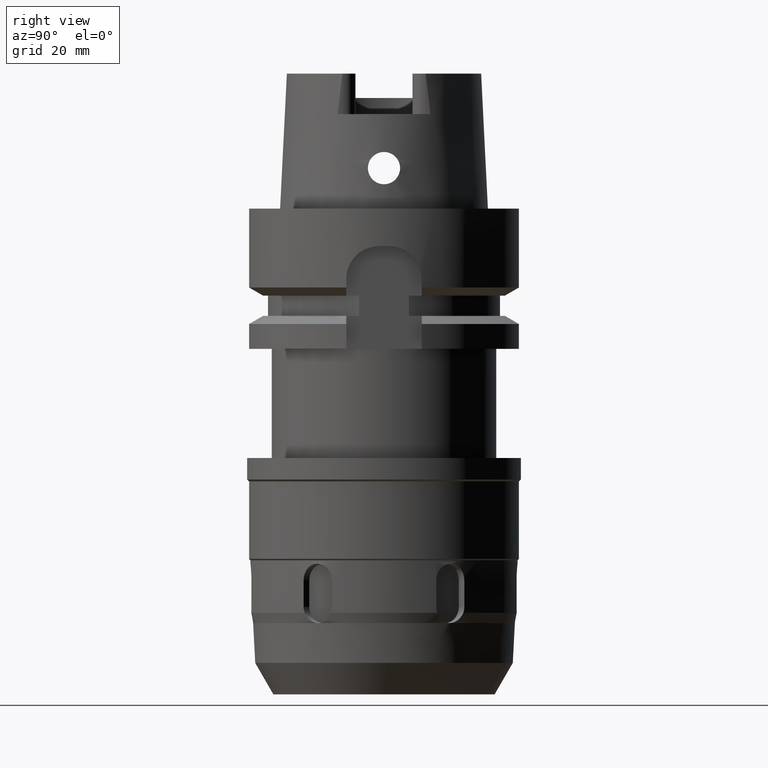
[diagram: clean part render]
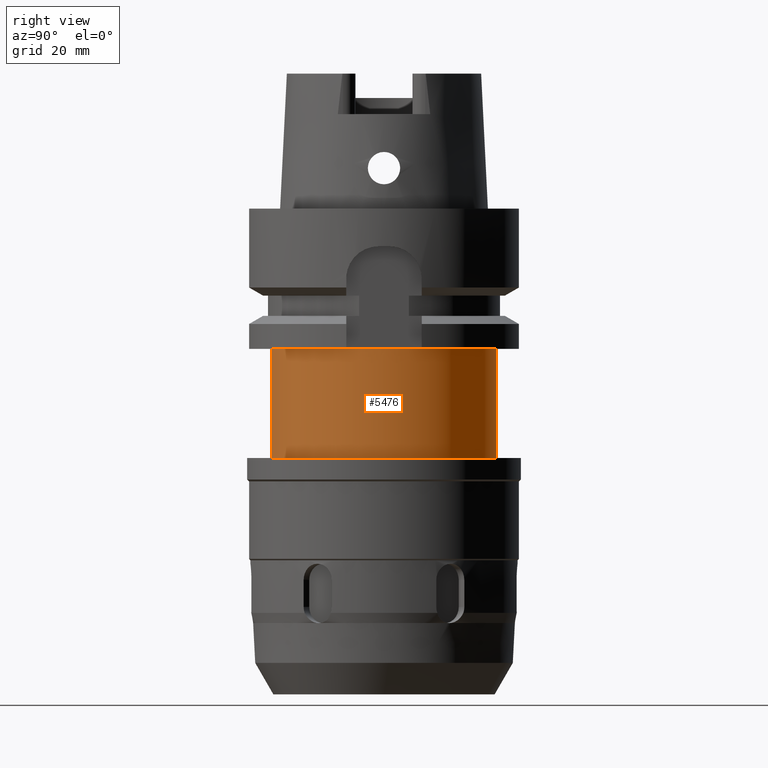
[diagram: same view with one face highlighted and labeled with its STEP entity id]
A machine part, right view. The second image highlights one B-rep face of the part: STEP entity #5476.
In plain terms, the highlighted cylindrical surface (partial cylindrical patch) has radius 20.8 mm, axis along (0, 0, 1).
Its self-contained STEP definition (entity closure, byte-faithful):
#2291=CARTESIAN_POINT('',(0.E0,0.E0,-4.62E1));
#2292=DIRECTION('',(0.E0,0.E0,1.E0));
#2293=DIRECTION('',(0.E0,-1.E0,0.E0));
#2294=AXIS2_PLACEMENT_3D('',#2291,#2292,#2293);
#2307=DIRECTION('',(0.E0,0.E0,-1.E0));
#2308=VECTOR('',#2307,2.02E1);
#2309=CARTESIAN_POINT('',(0.E0,2.08E1,-2.6E1));
#2310=LINE('',#2309,#2308);
#2314=DIRECTION('',(0.E0,0.E0,-1.E0));
#2315=VECTOR('',#2314,2.02E1);
#2316=CARTESIAN_POINT('',(0.E0,-2.08E1,-2.6E1));
#2317=LINE('',#2316,#2315);
#2397=CARTESIAN_POINT('',(0.E0,0.E0,-2.6E1));
#2398=DIRECTION('',(0.E0,0.E0,-1.E0));
#2399=DIRECTION('',(0.E0,1.E0,0.E0));
#2400=AXIS2_PLACEMENT_3D('',#2397,#2398,#2399);
#3716=CARTESIAN_POINT('',(0.E0,-2.08E1,-4.62E1));
#3717=CARTESIAN_POINT('',(0.E0,2.08E1,-4.62E1));
#3718=VERTEX_POINT('',#3716);
#3719=VERTEX_POINT('',#3717);
#3720=CARTESIAN_POINT('',(0.E0,2.08E1,-2.6E1));
#3721=VERTEX_POINT('',#3720);
#3722=CARTESIAN_POINT('',(0.E0,-2.08E1,-2.6E1));
#3723=VERTEX_POINT('',#3722);
#5462=CARTESIAN_POINT('',(0.E0,0.E0,-9.575E1));
#5463=DIRECTION('',(0.E0,0.E0,1.E0));
#5464=DIRECTION('',(0.E0,1.E0,0.E0));
#5465=AXIS2_PLACEMENT_3D('',#5462,#5463,#5464);
#5466=CYLINDRICAL_SURFACE('',#5465,2.08E1);
#5468=ORIENTED_EDGE('',*,*,#5467,.T.);
#5469=ORIENTED_EDGE('',*,*,#5455,.F.);
#5471=ORIENTED_EDGE('',*,*,#5470,.F.);
#5473=ORIENTED_EDGE('',*,*,#5472,.F.);
#5474=EDGE_LOOP('',(#5468,#5469,#5471,#5473));
#5475=FACE_OUTER_BOUND('',#5474,.F.);
#2295=CIRCLE('',#2294,2.08E1);
#2401=CIRCLE('',#2400,2.08E1);
#5455=EDGE_CURVE('',#3718,#3719,#2295,.T.);
#5467=EDGE_CURVE('',#3721,#3719,#2310,.T.);
#5470=EDGE_CURVE('',#3723,#3718,#2317,.T.);
#5472=EDGE_CURVE('',#3721,#3723,#2401,.T.);
#5476=ADVANCED_FACE('',(#5475),#5466,.T.);